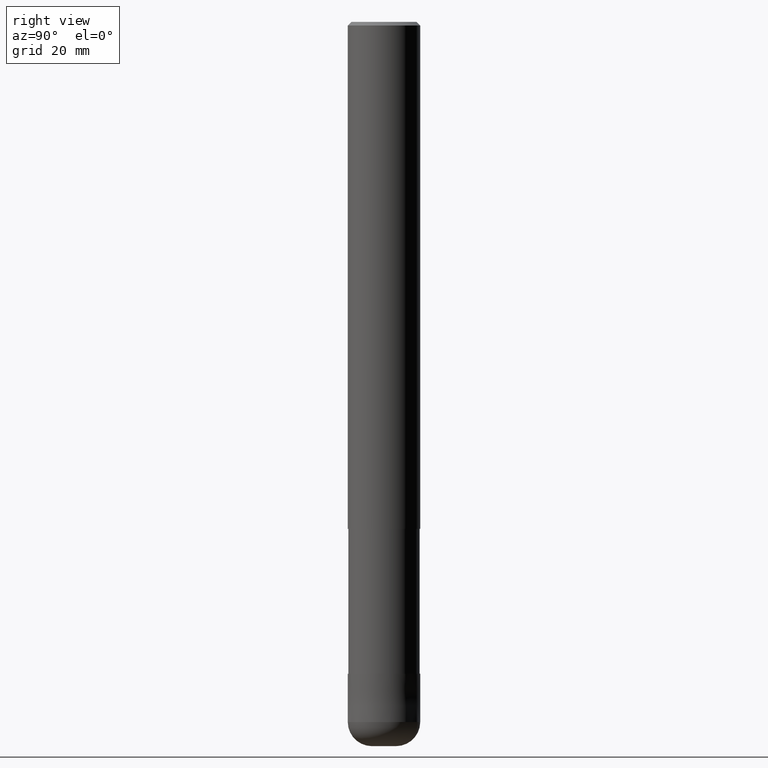
[diagram: clean part render]
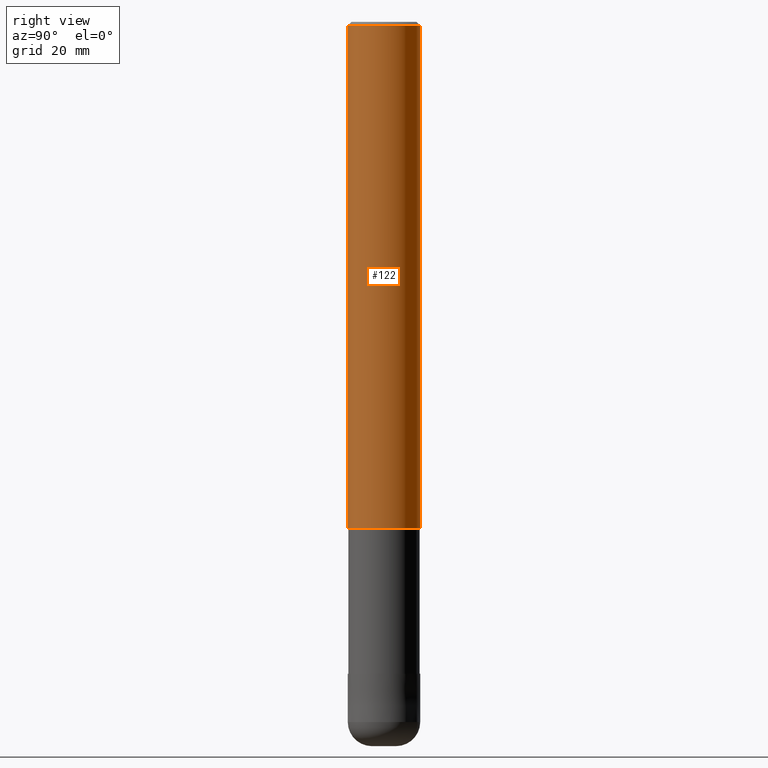
[diagram: same view with one face highlighted and labeled with its STEP entity id]
A machine part, right view. The second image highlights one B-rep face of the part: STEP entity #122.
In plain terms, the highlighted cylindrical surface (edge-blend (fillet) strip) has radius 6 mm, axis along (-0, -0, 1).
Its self-contained STEP definition (entity closure, byte-faithful):
#100=VERTEX_POINT('',#238);
#102=VERTEX_POINT('',#240);
#122=ADVANCED_FACE('',(#261),#262,.T.);
#124=EDGE_CURVE('',#100,#178,#264,.T.);
#142=VERTEX_POINT('',#285);
#178=VERTEX_POINT('',#327);
#180=EDGE_CURVE('',#100,#102,#329,.T.);
#192=EDGE_CURVE('',#142,#102,#343,.T.);
#200=EDGE_CURVE('',#178,#142,#352,.T.);
#238=CARTESIAN_POINT('',(0.0,6.0,-0.599999999999994));
#240=CARTESIAN_POINT('',(7.34763812293426E-016,-6.0,-0.599999999999994));
#261=FACE_OUTER_BOUND('',#413,.T.);
#262=CYLINDRICAL_SURFACE('',#414,6.0);
#264=LINE('',#417,#418);
#285=CARTESIAN_POINT('',(7.34763812293426E-016,-6.0,-84.0));
#327=CARTESIAN_POINT('',(0.0,6.0,-84.0));
#329=CIRCLE('',#496,6.0);
#343=LINE('',#514,#515);
#352=CIRCLE('',#527,6.0);
#413=EDGE_LOOP('',(#575,#576,#577,#578));
#414=AXIS2_PLACEMENT_3D('',#579,#580,#581);
#417=CARTESIAN_POINT('',(-7.34763812293426E-016,6.0,-42.3));
#418=VECTOR('',#582,1.0);
#496=AXIS2_PLACEMENT_3D('',#670,#671,#672);
#514=CARTESIAN_POINT('',(7.34763812293426E-016,-6.0,-42.3));
#515=VECTOR('',#691,1.0);
#527=AXIS2_PLACEMENT_3D('',#706,#707,#708);
#575=ORIENTED_EDGE('',*,*,#124,.F.);
#576=ORIENTED_EDGE('',*,*,#180,.T.);
#577=ORIENTED_EDGE('',*,*,#192,.F.);
#578=ORIENTED_EDGE('',*,*,#200,.F.);
#579=CARTESIAN_POINT('',(0.0,0.0,-42.3));
#580=DIRECTION('',(-0.0,-0.0,1.0));
#581=DIRECTION('',(0.0,1.0,0.0));
#582=DIRECTION('',(0.0,0.0,-1.0));
#670=CARTESIAN_POINT('',(0.0,0.0,-0.599999999999994));
#671=DIRECTION('',(0.0,0.0,-1.0));
#672=DIRECTION('',(0.0,1.0,0.0));
#691=DIRECTION('',(-0.0,-0.0,1.0));
#706=CARTESIAN_POINT('',(0.0,0.0,-84.0));
#707=DIRECTION('',(0.0,0.0,-1.0));
#708=DIRECTION('',(0.0,1.0,0.0));